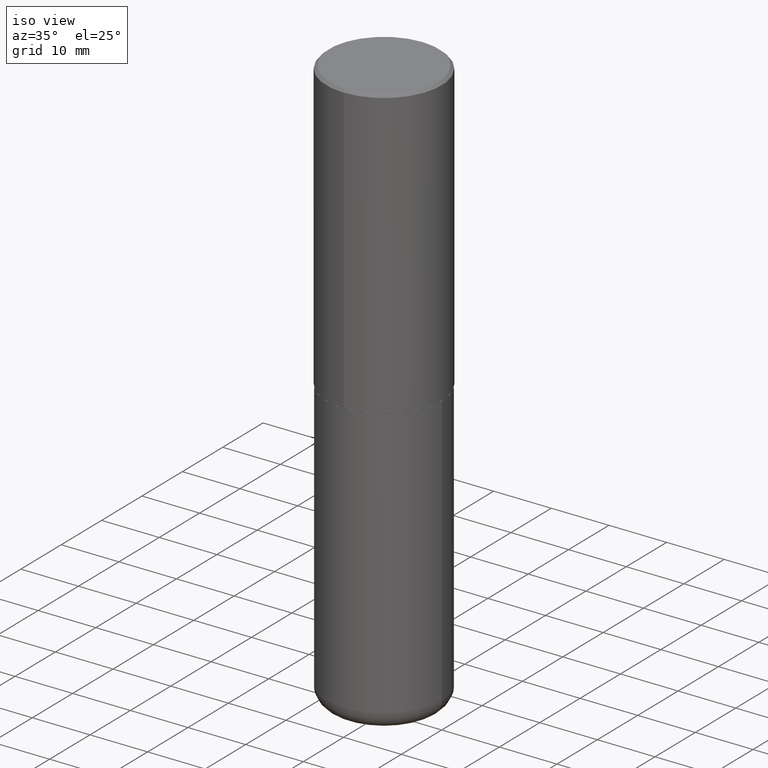
[diagram: clean part render]
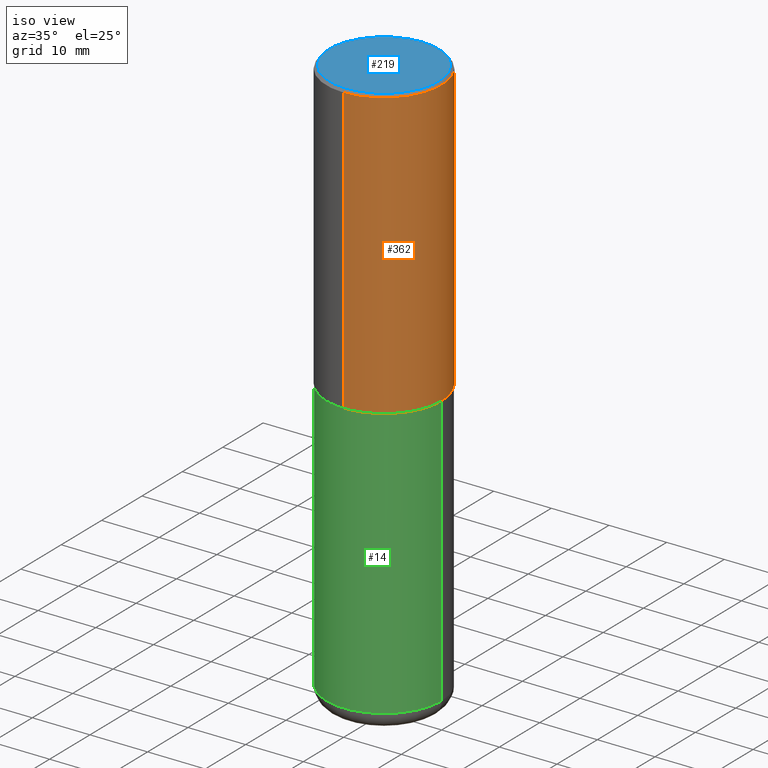
[diagram: same view with three faces highlighted in distinct colors, each labeled with its STEP entity id]
A machine part, iso view with three faces highlighted in distinct colors.
Their STEP definitions:

[orange] entity #362 — the highlighted cylindrical surface (partial cylindrical patch) has radius 10 mm, axis along (-0, 0, 1).
#11 = VERTEX_POINT ( 'NONE', #177 ) ;
#16 = CIRCLE ( 'NONE', #121, 0.3937000000000002720 ) ;
#18 = EDGE_CURVE ( 'NONE', #11, #260, #16, .T. ) ;
#34 = DIRECTION ( 'NONE',  ( -2.447902336346030930E-29, 3.487996385144809755E-15, 1.000000000000000000 ) ) ;
#65 = EDGE_CURVE ( 'NONE', #11, #104, #266, .T. ) ;
#70 = CARTESIAN_POINT ( 'NONE',  ( -2.700978061722651252E-15, -0.3937000000000001054, -0.01999999999999870978 ) ) ;
#101 = ORIENTED_EDGE ( 'NONE', *, *, #18, .T. ) ;
#104 = VERTEX_POINT ( 'NONE', #70 ) ;
#121 = AXIS2_PLACEMENT_3D ( 'NONE', #256, #381, #152 ) ;
#152 = DIRECTION ( 'NONE',  ( -6.982962677686265922E-15, -1.000000000000000000, 3.469453890861393601E-15 ) ) ;
#164 = DIRECTION ( 'NONE',  ( -2.447902336346030930E-29, 3.487996385144809360E-15, 1.000000000000000000 ) ) ;
#172 = ORIENTED_EDGE ( 'NONE', *, *, #199, .F. ) ;
#177 = CARTESIAN_POINT ( 'NONE',  ( -2.749192406205036674E-15, -0.3937000000000070998, -1.967499999999998694 ) ) ;
#187 = LINE ( 'NONE', #281, #331 ) ;
#188 = CARTESIAN_POINT ( 'NONE',  ( 0.000000000000000000, 0.000000000000000000, 0.000000000000000000 ) ) ;
#199 = EDGE_CURVE ( 'NONE', #104, #269, #404, .T. ) ;
#206 = AXIS2_PLACEMENT_3D ( 'NONE', #188, #378, #308 ) ;
#212 = CARTESIAN_POINT ( 'NONE',  ( 2.797406750687540030E-15, 0.3936999999999934441, -1.967500000000001359 ) ) ;
#228 = ORIENTED_EDGE ( 'NONE', *, *, #65, .F. ) ;
#245 = CYLINDRICAL_SURFACE ( 'NONE', #206, 0.3937000000000001609 ) ;
#256 = CARTESIAN_POINT ( 'NONE',  ( 4.816247846760815671E-29, -6.862632887772413316E-15, -1.967500000000000027 ) ) ;
#260 = VERTEX_POINT ( 'NONE', #212 ) ;
#266 = LINE ( 'NONE', #358, #270 ) ;
#269 = VERTEX_POINT ( 'NONE', #343 ) ;
#270 = VECTOR ( 'NONE', #164, 39.37007874015748143 ) ;
#276 = FACE_OUTER_BOUND ( 'NONE', #326, .T. ) ;
#281 = CARTESIAN_POINT ( 'NONE',  ( 2.797406750687515181E-15, 0.3937000000000001609, -1.373224176831512065E-15 ) ) ;
#283 = AXIS2_PLACEMENT_3D ( 'NONE', #319, #34, #348 ) ;
#308 = DIRECTION ( 'NONE',  ( -6.982962677686265922E-15, -1.000000000000000000, 3.487996385144809360E-15 ) ) ;
#319 = CARTESIAN_POINT ( 'NONE',  ( 4.895804672692082949E-31, -6.975992770289649092E-17, -0.02000000000000008715 ) ) ;
#326 = EDGE_LOOP ( 'NONE', ( #101, #397, #172, #228 ) ) ;
#328 = EDGE_CURVE ( 'NONE', #260, #269, #187, .T. ) ;
#331 = VECTOR ( 'NONE', #416, 39.37007874015748143 ) ;
#343 = CARTESIAN_POINT ( 'NONE',  ( 2.749192406205083217E-15, 0.3936999999999999389, -0.02000000000000146105 ) ) ;
#348 = DIRECTION ( 'NONE',  ( -6.982962677686265133E-15, -1.000000000000000000, 3.491137977679279424E-15 ) ) ;
#358 = CARTESIAN_POINT ( 'NONE',  ( -2.749192406205084005E-15, -0.3937000000000001609, 1.373224176831512065E-15 ) ) ;
#362 = ADVANCED_FACE ( 'NONE', ( #276 ), #245, .T. ) ;
#378 = DIRECTION ( 'NONE',  ( -2.447902336346030930E-29, 3.487996385144809755E-15, 1.000000000000000000 ) ) ;
#381 = DIRECTION ( 'NONE',  ( -2.447902336346030930E-29, 3.487996385144809755E-15, 1.000000000000000000 ) ) ;
#397 = ORIENTED_EDGE ( 'NONE', *, *, #328, .T. ) ;
#404 = CIRCLE ( 'NONE', #283, 0.3937000000000000499 ) ;
#416 = DIRECTION ( 'NONE',  ( -2.447902336346030930E-29, 3.487996385144809360E-15, 1.000000000000000000 ) ) ;

[blue] entity #219 — the highlighted planar face has unit normal (0, -0, -1).
#21 = CARTESIAN_POINT ( 'NONE',  ( 1.599214952469751148E-45, -2.278708545868848433E-31, -6.533001454857425165E-17 ) ) ;
#26 = DIRECTION ( 'NONE',  ( 2.447902336346030930E-29, -3.487996385144809360E-15, -1.000000000000000000 ) ) ;
#31 = CARTESIAN_POINT ( 'NONE',  ( 2.609533152651357803E-15, 0.3737000000000000322, -1.336129256402902755E-15 ) ) ;
#55 = DIRECTION ( 'NONE',  ( -6.982962677686265922E-15, -1.000000000000000000, 3.487996385144809755E-15 ) ) ;
#67 = DIRECTION ( 'NONE',  ( -6.982962677686265922E-15, -1.000000000000000000, 3.487996385144809755E-15 ) ) ;
#98 = VERTEX_POINT ( 'NONE', #227 ) ;
#115 = DIRECTION ( 'NONE',  ( 6.982962677686265922E-15, 1.000000000000000000, -3.487996385144809360E-15 ) ) ;
#119 = ORIENTED_EDGE ( 'NONE', *, *, #186, .T. ) ;
#130 = DIRECTION ( 'NONE',  ( -2.447902336346030930E-29, 3.487996385144809755E-15, 1.000000000000000000 ) ) ;
#136 = VERTEX_POINT ( 'NONE', #417 ) ;
#147 = AXIS2_PLACEMENT_3D ( 'NONE', #21, #376, #55 ) ;
#153 = ORIENTED_EDGE ( 'NONE', *, *, #342, .T. ) ;
#158 = AXIS2_PLACEMENT_3D ( 'NONE', #31, #26, #115 ) ;
#161 = FACE_OUTER_BOUND ( 'NONE', #225, .T. ) ;
#186 = EDGE_CURVE ( 'NONE', #98, #136, #213, .T. ) ;
#193 = PLANE ( 'NONE',  #158 ) ;
#213 = CIRCLE ( 'NONE', #340, 0.3737000000000000322 ) ;
#219 = ADVANCED_FACE ( 'NONE', ( #161 ), #193, .F. ) ;
#225 = EDGE_LOOP ( 'NONE', ( #153, #119 ) ) ;
#227 = CARTESIAN_POINT ( 'NONE',  ( -2.632373081744936315E-15, -0.3737000000000000322, 1.238134234580041113E-15 ) ) ;
#340 = AXIS2_PLACEMENT_3D ( 'NONE', #356, #130, #67 ) ;
#342 = EDGE_CURVE ( 'NONE', #136, #98, #349, .T. ) ;
#349 = CIRCLE ( 'NONE', #147, 0.3737000000000000322 ) ;
#356 = CARTESIAN_POINT ( 'NONE',  ( 1.599214952469751148E-45, -2.278708545868848433E-31, -6.533001454857425165E-17 ) ) ;
#376 = DIRECTION ( 'NONE',  ( -2.447902336346030930E-29, 3.487996385144809755E-15, 1.000000000000000000 ) ) ;
#417 = CARTESIAN_POINT ( 'NONE',  ( 2.679362779428220707E-15, 0.3737000000000000322, -1.368794263677189641E-15 ) ) ;

[green] entity #14 — the highlighted cylindrical surface (partial cylindrical patch) has radius 10 mm, axis along (-0, 0, 1).
#4 = EDGE_LOOP ( 'NONE', ( #75, #83, #159, #365 ) ) ;
#14 = ADVANCED_FACE ( 'NONE', ( #15 ), #238, .T. ) ;
#15 = FACE_OUTER_BOUND ( 'NONE', #4, .T. ) ;
#23 = AXIS2_PLACEMENT_3D ( 'NONE', #204, #93, #166 ) ;
#30 = CARTESIAN_POINT ( 'NONE',  ( 0.3937000000000000499, -1.608281049111317408E-14, -3.818900000000000183 ) ) ;
#57 = CARTESIAN_POINT ( 'NONE',  ( 0.3937000000000000499, -2.749192406205083217E-15, 1.919750796630860172E-29 ) ) ;
#58 = EDGE_CURVE ( 'NONE', #323, #268, #106, .T. ) ;
#61 = AXIS2_PLACEMENT_3D ( 'NONE', #394, #306, #285 ) ;
#75 = ORIENTED_EDGE ( 'NONE', *, *, #79, .F. ) ;
#79 = EDGE_CURVE ( 'NONE', #323, #379, #231, .T. ) ;
#82 = VECTOR ( 'NONE', #94, 39.37007874015748143 ) ;
#83 = ORIENTED_EDGE ( 'NONE', *, *, #58, .T. ) ;
#90 = CARTESIAN_POINT ( 'NONE',  ( 0.3937000000000000499, -9.622173421717814924E-15, -1.968500000000000139 ) ) ;
#92 = CARTESIAN_POINT ( 'NONE',  ( -0.3937000000000000499, -1.053621133422057529E-14, -3.818900000000000183 ) ) ;
#93 = DIRECTION ( 'NONE',  ( -2.445468806185136597E-29, 3.491481338843145583E-15, 1.000000000000000000 ) ) ;
#94 = DIRECTION ( 'NONE',  ( -2.445468806185136877E-29, 3.491481338843145188E-15, 1.000000000000000000 ) ) ;
#106 = CIRCLE ( 'NONE', #129, 0.3937000000000000499 ) ;
#129 = AXIS2_PLACEMENT_3D ( 'NONE', #310, #303, #262 ) ;
#159 = ORIENTED_EDGE ( 'NONE', *, *, #263, .T. ) ;
#166 = DIRECTION ( 'NONE',  ( 1.000000000000000000, -6.982962677686265133E-15, 0.000000000000000000 ) ) ;
#204 = CARTESIAN_POINT ( 'NONE',  ( 4.813905344975441835E-29, -6.872981015512731707E-15, -1.968500000000000139 ) ) ;
#223 = VECTOR ( 'NONE', #286, 39.37007874015748143 ) ;
#231 = LINE ( 'NONE', #325, #82 ) ;
#234 = CIRCLE ( 'NONE', #23, 0.3937000000000000499 ) ;
#238 = CYLINDRICAL_SURFACE ( 'NONE', #61, 0.3937000000000000499 ) ;
#257 = LINE ( 'NONE', #57, #223 ) ;
#262 = DIRECTION ( 'NONE',  ( 1.000000000000000000, -6.982962677686267499E-15, 0.000000000000000000 ) ) ;
#263 = EDGE_CURVE ( 'NONE', #268, #264, #257, .T. ) ;
#264 = VERTEX_POINT ( 'NONE', #90 ) ;
#268 = VERTEX_POINT ( 'NONE', #30 ) ;
#285 = DIRECTION ( 'NONE',  ( 1.000000000000000000, -6.982962677686265922E-15, 4.876176775795935793E-29 ) ) ;
#286 = DIRECTION ( 'NONE',  ( -2.445468806185136877E-29, 3.491481338843145188E-15, 1.000000000000000000 ) ) ;
#295 = CARTESIAN_POINT ( 'NONE',  ( -0.3937000000000000499, -7.305892799522895709E-15, -1.968500000000000139 ) ) ;
#303 = DIRECTION ( 'NONE',  ( -2.445468806185136597E-29, 3.491481338843145583E-15, 1.000000000000000000 ) ) ;
#306 = DIRECTION ( 'NONE',  ( -2.445468806185136597E-29, 3.491481338843145583E-15, 1.000000000000000000 ) ) ;
#310 = CARTESIAN_POINT ( 'NONE',  ( 9.339000823940418668E-29, -1.333361808490808928E-14, -3.818900000000000183 ) ) ;
#323 = VERTEX_POINT ( 'NONE', #92 ) ;
#325 = CARTESIAN_POINT ( 'NONE',  ( -0.3937000000000000499, 2.797406750687514786E-15, -1.936584745033356735E-29 ) ) ;
#365 = ORIENTED_EDGE ( 'NONE', *, *, #410, .F. ) ;
#379 = VERTEX_POINT ( 'NONE', #295 ) ;
#394 = CARTESIAN_POINT ( 'NONE',  ( 0.000000000000000000, 0.000000000000000000, 0.000000000000000000 ) ) ;
#410 = EDGE_CURVE ( 'NONE', #379, #264, #234, .T. ) ;